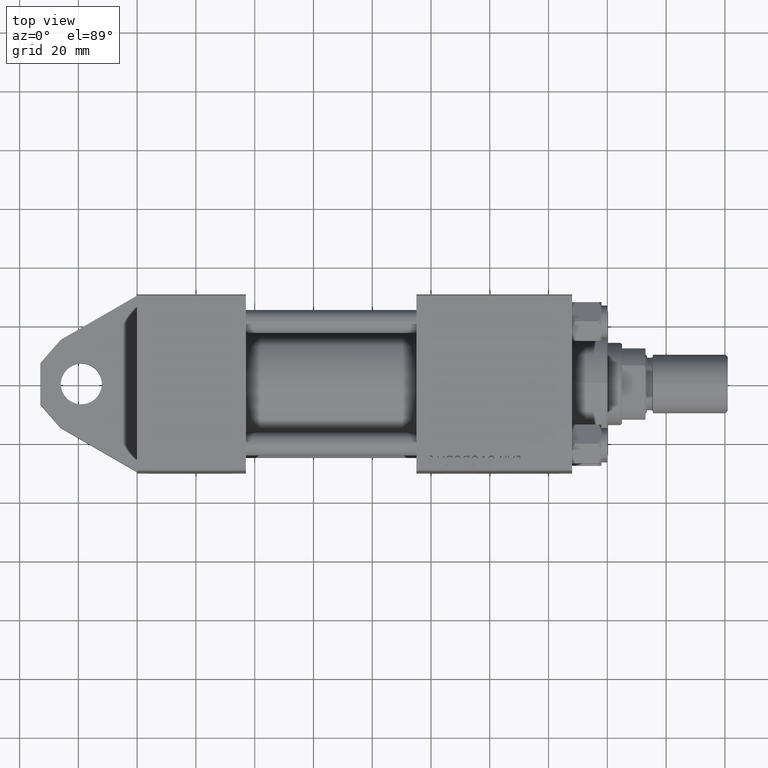
[diagram: clean part render]
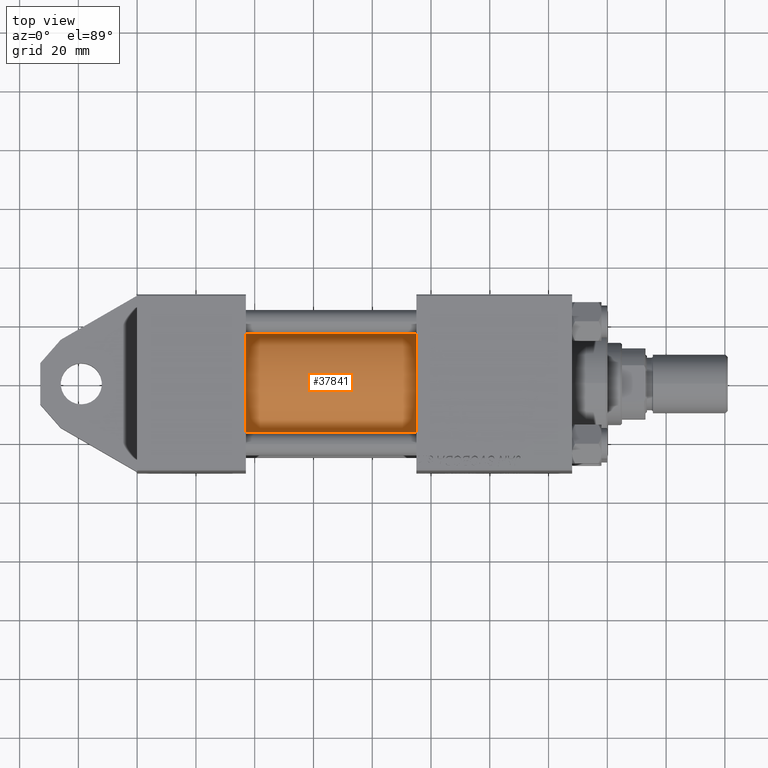
[diagram: same view with one face highlighted and labeled with its STEP entity id]
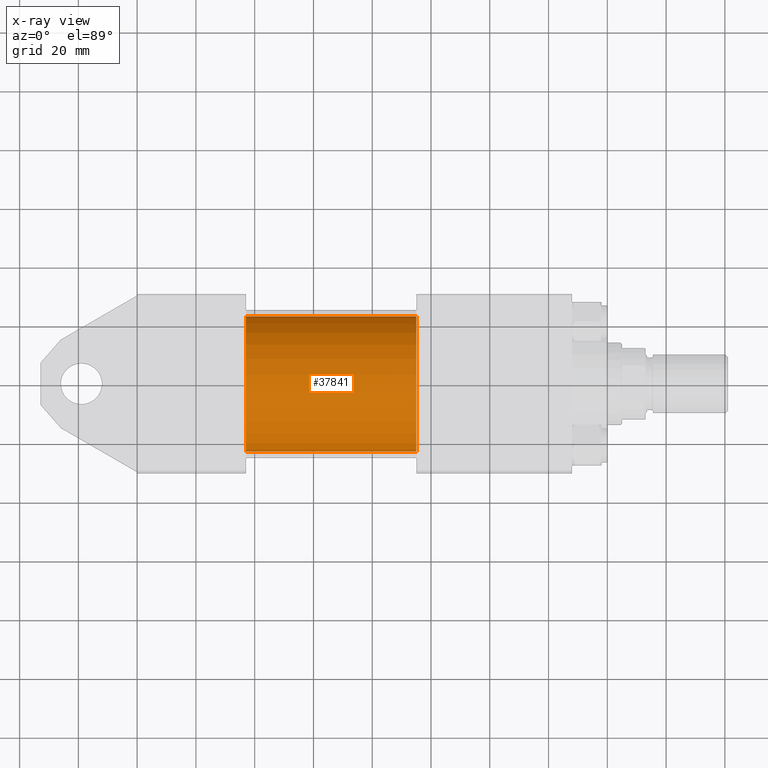
[diagram: x-ray of the same camera — body ghosted, the highlighted face saturated]
A machine part, top view. The second image highlights one B-rep face of the part: STEP entity #37841.
The next image is the same camera in x-ray: the body ghosted, the highlighted face saturated — about 0% of this face is hidden behind the body in this view.
In plain terms, the highlighted cylindrical surface (partial cylindrical patch) has radius 23 mm, axis along (-1, -0, 0).
Its self-contained STEP definition (entity closure, byte-faithful):
#67 = CARTESIAN_POINT ( 'NONE',  ( 95.00000000000000000, -2.602085213965210642E-15, 0.000000000000000000 ) ) ;
#937 = CARTESIAN_POINT ( 'NONE',  ( 37.00000000000000000, -2.602085213965210642E-15, 0.000000000000000000 ) ) ;
#1300 = DIRECTION ( 'NONE',  ( 1.000000000000000000, 0.000000000000000000, 0.000000000000000000 ) ) ;
#1890 = CIRCLE ( 'NONE', #25958, 23.00000000000000000 ) ;
#2415 = AXIS2_PLACEMENT_3D ( 'NONE', #67, #42902, #6927 ) ;
#3660 = LINE ( 'NONE', #10525, #10610 ) ;
#3833 = EDGE_CURVE ( 'NONE', #24675, #45981, #37808, .T. ) ;
#5974 = CARTESIAN_POINT ( 'NONE',  ( 95.00000000000000000, -2.602085213965210642E-15, 23.00000000000000000 ) ) ;
#6257 = EDGE_CURVE ( 'NONE', #10367, #45981, #1890, .T. ) ;
#6927 = DIRECTION ( 'NONE',  ( 0.000000000000000000, 0.000000000000000000, 1.000000000000000000 ) ) ;
#8960 = DIRECTION ( 'NONE',  ( 1.000000000000000000, -0.000000000000000000, 0.000000000000000000 ) ) ;
#10320 = ORIENTED_EDGE ( 'NONE', *, *, #31518, .T. ) ;
#10367 = VERTEX_POINT ( 'NONE', #36665 ) ;
#10525 = CARTESIAN_POINT ( 'NONE',  ( 95.00000000000000000, 2.146024240737012665E-16, -23.00000000000000000 ) ) ;
#10610 = VECTOR ( 'NONE', #28398, 1000.000000000000000 ) ;
#10774 = ORIENTED_EDGE ( 'NONE', *, *, #3833, .F. ) ;
#11153 = FACE_OUTER_BOUND ( 'NONE', #25568, .T. ) ;
#11221 = ORIENTED_EDGE ( 'NONE', *, *, #6257, .T. ) ;
#12622 = DIRECTION ( 'NONE',  ( 0.000000000000000000, 0.000000000000000000, -1.000000000000000000 ) ) ;
#12657 = CARTESIAN_POINT ( 'NONE',  ( 95.00000000000000000, -2.602085213965210642E-15, 23.00000000000000000 ) ) ;
#16097 = VECTOR ( 'NONE', #34281, 1000.000000000000000 ) ;
#22342 = CARTESIAN_POINT ( 'NONE',  ( 37.00000000000000000, -2.602085213965210642E-15, 23.00000000000000000 ) ) ;
#24675 = VERTEX_POINT ( 'NONE', #5974 ) ;
#25246 = VERTEX_POINT ( 'NONE', #42550 ) ;
#25568 = EDGE_LOOP ( 'NONE', ( #31305, #10320, #11221, #10774 ) ) ;
#25595 = CIRCLE ( 'NONE', #43602, 23.00000000000000000 ) ;
#25958 = AXIS2_PLACEMENT_3D ( 'NONE', #937, #8960, #40471 ) ;
#28398 = DIRECTION ( 'NONE',  ( -1.000000000000000000, -0.000000000000000000, -0.000000000000000000 ) ) ;
#31040 = CARTESIAN_POINT ( 'NONE',  ( 95.00000000000000000, -2.602085213965210642E-15, 0.000000000000000000 ) ) ;
#31305 = ORIENTED_EDGE ( 'NONE', *, *, #45155, .F. ) ;
#31518 = EDGE_CURVE ( 'NONE', #25246, #10367, #3660, .T. ) ;
#32545 = CYLINDRICAL_SURFACE ( 'NONE', #2415, 23.00000000000000000 ) ;
#34281 = DIRECTION ( 'NONE',  ( -1.000000000000000000, -0.000000000000000000, -0.000000000000000000 ) ) ;
#36665 = CARTESIAN_POINT ( 'NONE',  ( 37.00000000000000000, 2.146024240737012665E-16, -23.00000000000000000 ) ) ;
#37808 = LINE ( 'NONE', #12657, #16097 ) ;
#37841 = ADVANCED_FACE ( 'NONE', ( #11153 ), #32545, .T. ) ;
#40471 = DIRECTION ( 'NONE',  ( 0.000000000000000000, 0.000000000000000000, 1.000000000000000000 ) ) ;
#42550 = CARTESIAN_POINT ( 'NONE',  ( 95.00000000000000000, 2.146024240737012665E-16, -23.00000000000000000 ) ) ;
#42902 = DIRECTION ( 'NONE',  ( -1.000000000000000000, -0.000000000000000000, -0.000000000000000000 ) ) ;
#43602 = AXIS2_PLACEMENT_3D ( 'NONE', #31040, #1300, #12622 ) ;
#45155 = EDGE_CURVE ( 'NONE', #25246, #24675, #25595, .T. ) ;
#45981 = VERTEX_POINT ( 'NONE', #22342 ) ;